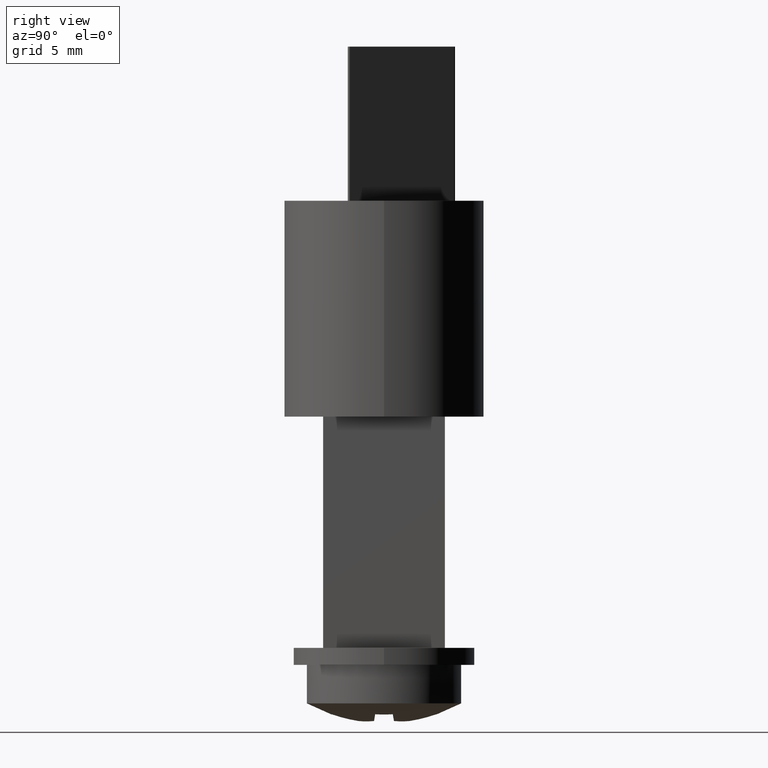
[diagram: clean part render]
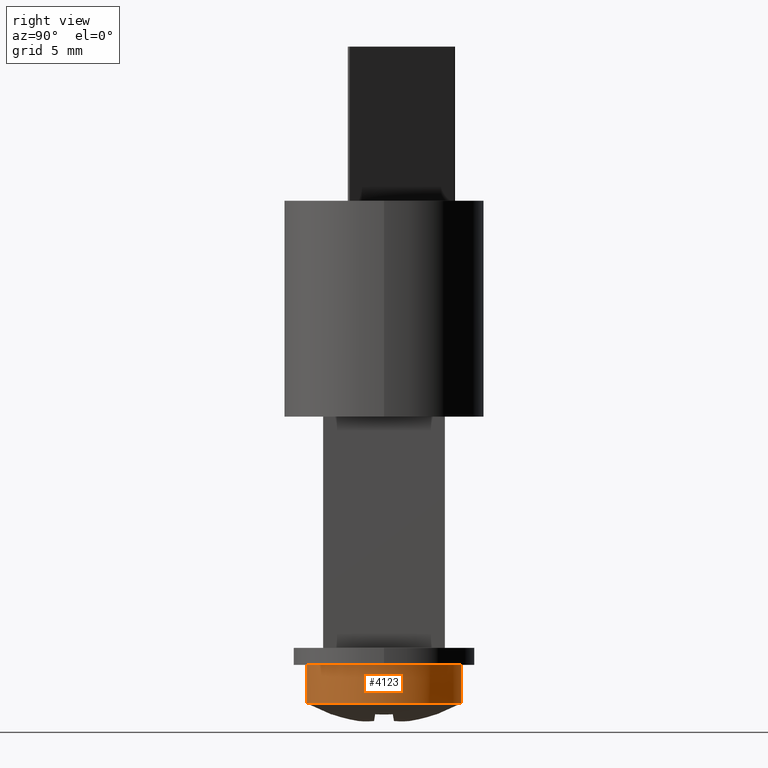
[diagram: same view with one face highlighted and labeled with its STEP entity id]
A machine part, right view. The second image highlights one B-rep face of the part: STEP entity #4123.
In plain terms, the highlighted cylindrical surface (partial cylindrical patch) has radius 5 mm, axis along (0, 0, -1).
Its self-contained STEP definition (entity closure, byte-faithful):
#39 = AXIS2_PLACEMENT_3D ( 'NONE', #10815, #1856, #4544 ) ;
#297 = CARTESIAN_POINT ( 'NONE',  ( 1.965304695223972746E-15, 6.600000000000001421, 4.999999999999998224 ) ) ;
#534 = CIRCLE ( 'NONE', #551, 4.999999999999998224 ) ;
#545 = CARTESIAN_POINT ( 'NONE',  ( 1.965304695223972746E-15, 6.600000000000001421, 0.000000000000000000 ) ) ;
#551 = AXIS2_PLACEMENT_3D ( 'NONE', #545, #12096, #10650 ) ;
#1089 = CARTESIAN_POINT ( 'NONE',  ( 1.965304695223972746E-15, 4.100000000000001421, 0.000000000000000000 ) ) ;
#1264 = ORIENTED_EDGE ( 'NONE', *, *, #15290, .F. ) ;
#1301 = CYLINDRICAL_SURFACE ( 'NONE', #39, 4.999999999999999112 ) ;
#1302 = DIRECTION ( 'NONE',  ( -0.000000000000000000, 1.000000000000000000, -0.000000000000000000 ) ) ;
#1486 = CARTESIAN_POINT ( 'NONE',  ( 2.577628094797648881E-15, 4.100000000000001421, -4.999999999999999112 ) ) ;
#1856 = DIRECTION ( 'NONE',  ( -0.000000000000000000, 1.000000000000000000, -0.000000000000000000 ) ) ;
#1954 = EDGE_CURVE ( 'NONE', #11899, #3859, #534, .T. ) ;
#2047 = DIRECTION ( 'NONE',  ( 0.000000000000000000, 0.000000000000000000, 1.000000000000000000 ) ) ;
#2254 = CARTESIAN_POINT ( 'NONE',  ( 1.965304695223972746E-15, 4.100000000000001421, 4.999999999999999112 ) ) ;
#2327 = EDGE_CURVE ( 'NONE', #8224, #10360, #5643, .T. ) ;
#2332 = DIRECTION ( 'NONE',  ( 0.000000000000000000, 0.000000000000000000, 1.000000000000000000 ) ) ;
#3159 = VECTOR ( 'NONE', #14234, 1000.000000000000000 ) ;
#3300 = CARTESIAN_POINT ( 'NONE',  ( 2.577628094797648881E-15, 6.600000000000001421, -4.999999999999998224 ) ) ;
#3859 = VERTEX_POINT ( 'NONE', #297 ) ;
#4123 = ADVANCED_FACE ( 'NONE', ( #5227 ), #1301, .T. ) ;
#4539 = LINE ( 'NONE', #12961, #3159 ) ;
#4544 = DIRECTION ( 'NONE',  ( 0.000000000000000000, 0.000000000000000000, 1.000000000000000000 ) ) ;
#5227 = FACE_OUTER_BOUND ( 'NONE', #9428, .T. ) ;
#5229 = EDGE_CURVE ( 'NONE', #10360, #3859, #14260, .T. ) ;
#5643 = CIRCLE ( 'NONE', #14569, 4.999999999999999112 ) ;
#5787 = CARTESIAN_POINT ( 'NONE',  ( 1.965304695223972746E-15, 6.600000000000001421, 0.000000000000000000 ) ) ;
#6474 = CIRCLE ( 'NONE', #16156, 4.999999999999998224 ) ;
#8224 = VERTEX_POINT ( 'NONE', #1486 ) ;
#8393 = VERTEX_POINT ( 'NONE', #3300 ) ;
#9428 = EDGE_LOOP ( 'NONE', ( #12556, #10648, #9466, #12413, #1264 ) ) ;
#9466 = ORIENTED_EDGE ( 'NONE', *, *, #5229, .T. ) ;
#10360 = VERTEX_POINT ( 'NONE', #2254 ) ;
#10542 = CARTESIAN_POINT ( 'NONE',  ( -4.999999999999995559, 6.600000000000001421, -6.123233995736764310E-16 ) ) ;
#10648 = ORIENTED_EDGE ( 'NONE', *, *, #2327, .T. ) ;
#10650 = DIRECTION ( 'NONE',  ( 0.000000000000000000, 0.000000000000000000, 1.000000000000000000 ) ) ;
#10815 = CARTESIAN_POINT ( 'NONE',  ( 1.965304695223972746E-15, 7.900000000000000355, 0.000000000000000000 ) ) ;
#11899 = VERTEX_POINT ( 'NONE', #10542 ) ;
#12096 = DIRECTION ( 'NONE',  ( -0.000000000000000000, 1.000000000000000000, -0.000000000000000000 ) ) ;
#12260 = EDGE_CURVE ( 'NONE', #8224, #8393, #4539, .T. ) ;
#12263 = DIRECTION ( 'NONE',  ( -0.000000000000000000, 1.000000000000000000, -0.000000000000000000 ) ) ;
#12413 = ORIENTED_EDGE ( 'NONE', *, *, #1954, .F. ) ;
#12556 = ORIENTED_EDGE ( 'NONE', *, *, #12260, .F. ) ;
#12792 = CARTESIAN_POINT ( 'NONE',  ( 1.965304695223972746E-15, 7.900000000000000355, 4.999999999999999112 ) ) ;
#12961 = CARTESIAN_POINT ( 'NONE',  ( 2.577628094797648881E-15, 7.900000000000000355, -4.999999999999999112 ) ) ;
#14234 = DIRECTION ( 'NONE',  ( -0.000000000000000000, 1.000000000000000000, -0.000000000000000000 ) ) ;
#14260 = LINE ( 'NONE', #12792, #14453 ) ;
#14453 = VECTOR ( 'NONE', #1302, 1000.000000000000000 ) ;
#14569 = AXIS2_PLACEMENT_3D ( 'NONE', #1089, #12263, #2332 ) ;
#15290 = EDGE_CURVE ( 'NONE', #8393, #11899, #6474, .T. ) ;
#15863 = DIRECTION ( 'NONE',  ( -0.000000000000000000, 1.000000000000000000, -0.000000000000000000 ) ) ;
#16156 = AXIS2_PLACEMENT_3D ( 'NONE', #5787, #15863, #2047 ) ;